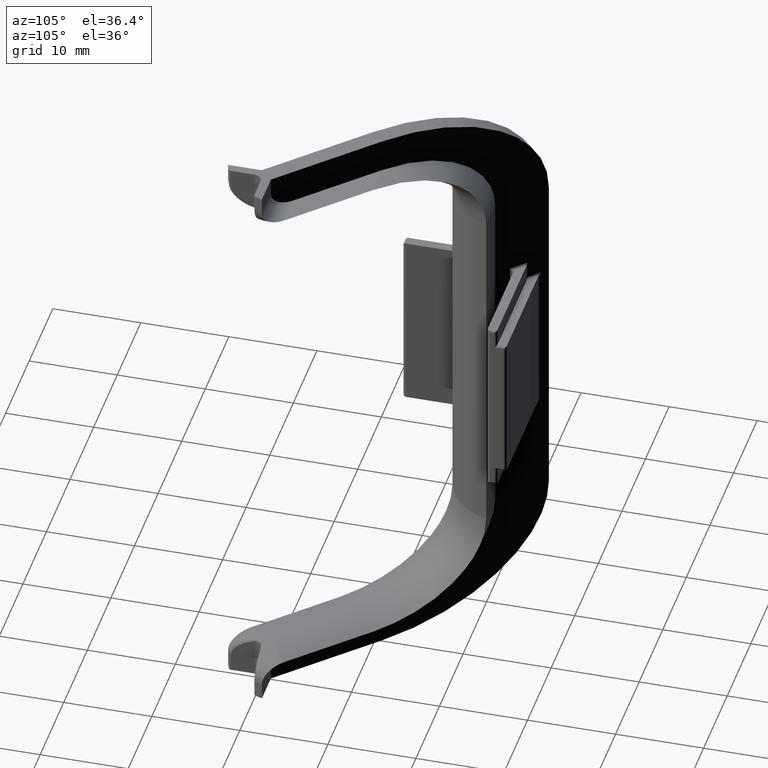
[diagram: clean part render]
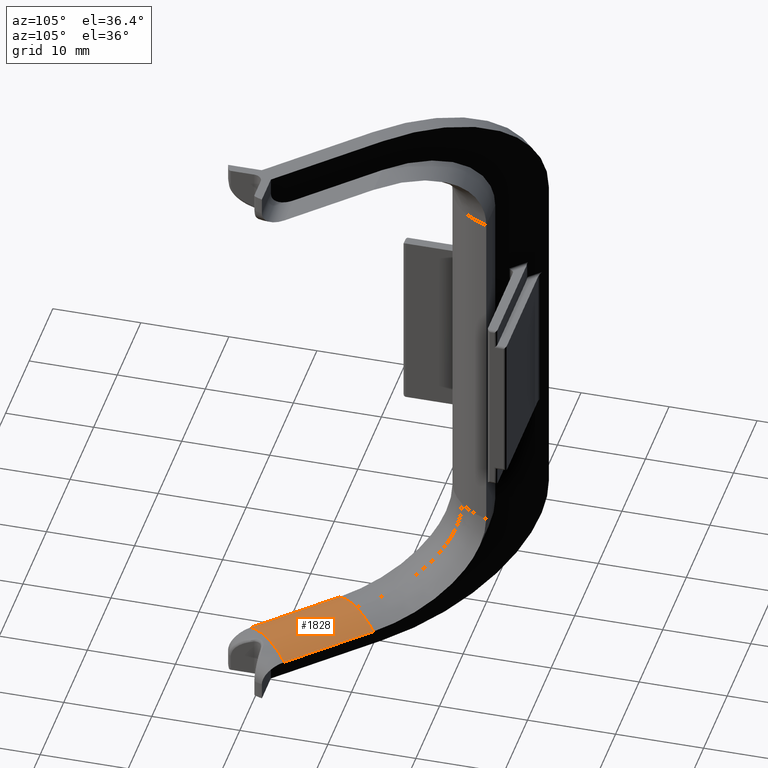
[diagram: same view with one face highlighted and labeled with its STEP entity id]
A machine part, auxiliary view. The second image highlights one B-rep face of the part: STEP entity #1828.
In plain terms, the highlighted cylindrical surface (partial cylindrical patch) has radius 8 mm, axis along (0.7071, -0.7071, 0).
Its self-contained STEP definition (entity closure, byte-faithful):
#255=FACE_OUTER_BOUND('',#364,.T.);
#364=EDGE_LOOP('',(#1647,#1648,#1649,#1650,#1651,#1652));
#492=LINE('',#3429,#637);
#503=LINE('',#3472,#648);
#637=VECTOR('',#2473,10.);
#648=VECTOR('',#2502,10.);
#681=CIRCLE('',#1888,8.);
#685=CIRCLE('',#1895,8.);
#696=CIRCLE('',#2030,8.);
#699=CIRCLE('',#2035,8.);
#746=VERTEX_POINT('',#3006);
#747=VERTEX_POINT('',#3011);
#755=VERTEX_POINT('',#3055);
#849=VERTEX_POINT('',#3417);
#858=VERTEX_POINT('',#3471);
#865=VERTEX_POINT('',#3528);
#930=EDGE_CURVE('',#746,#747,#681,.T.);
#942=EDGE_CURVE('',#755,#746,#685,.T.);
#1097=EDGE_CURVE('',#849,#755,#492,.T.);
#1112=EDGE_CURVE('',#858,#747,#503,.T.);
#1127=EDGE_CURVE('',#849,#865,#696,.T.);
#1133=EDGE_CURVE('',#858,#865,#699,.T.);
#1647=ORIENTED_EDGE('',*,*,#1112,.T.);
#1648=ORIENTED_EDGE('',*,*,#930,.F.);
#1649=ORIENTED_EDGE('',*,*,#942,.F.);
#1650=ORIENTED_EDGE('',*,*,#1097,.F.);
#1651=ORIENTED_EDGE('',*,*,#1127,.T.);
#1652=ORIENTED_EDGE('',*,*,#1133,.F.);
#1725=CYLINDRICAL_SURFACE('',#2034,8.);
#1828=ADVANCED_FACE('',(#255),#1725,.T.);
#1888=AXIS2_PLACEMENT_3D('',#3012,#2125,#2126);
#1895=AXIS2_PLACEMENT_3D('',#3057,#2145,#2146);
#2030=AXIS2_PLACEMENT_3D('',#3529,#2532,#2533);
#2034=AXIS2_PLACEMENT_3D('',#3577,#2541,#2542);
#2035=AXIS2_PLACEMENT_3D('',#3578,#2543,#2544);
#2125=DIRECTION('center_axis',(0.707106781186548,-0.707106781186547,6.36782550479628E-16));
#2126=DIRECTION('ref_axis',(0.327036886298778,0.327036886298779,0.886619281315266));
#2145=DIRECTION('center_axis',(0.707106781186548,-0.707106781186547,6.36782550479628E-16));
#2146=DIRECTION('ref_axis',(0.327036886298778,0.327036886298779,0.886619281315266));
#2473=DIRECTION('',(0.707106781186548,-0.707106781186547,7.85046229341888E-16));
#2502=DIRECTION('',(0.707106781186548,-0.707106781186547,7.85046229341888E-16));
#2532=DIRECTION('center_axis',(0.707106781186548,-0.707106781186547,6.36782550479628E-16));
#2533=DIRECTION('ref_axis',(0.327036886298778,0.327036886298779,0.886619281315266));
#2541=DIRECTION('center_axis',(0.707106781186548,-0.707106781186547,7.85046229341888E-16));
#2542=DIRECTION('ref_axis',(-0.327036886298779,-0.327036886298778,0.886619281315267));
#2543=DIRECTION('center_axis',(-0.707106781186548,0.707106781186547,-6.36782550479628E-16));
#2544=DIRECTION('ref_axis',(-0.327036886298779,-0.327036886298778,0.886619281315267));
#3006=CARTESIAN_POINT('',(20.6162950903902,30.6162950903902,-29.1929542505221));
#3011=CARTESIAN_POINT('',(18.,28.,-30.1));
#3012=CARTESIAN_POINT('Origin',(20.6162950903902,30.6162950903902,-37.1929542505221));
#3055=CARTESIAN_POINT('',(23.2325901807804,33.2325901807804,-30.1));
#3057=CARTESIAN_POINT('Origin',(20.6162950903902,30.6162950903902,-37.1929542505221));
#3417=CARTESIAN_POINT('',(15.2325901807805,41.2325901807804,-30.1));
#3429=CARTESIAN_POINT('',(15.2325901807805,41.2325901807804,-30.1));
#3471=CARTESIAN_POINT('',(10.,36.,-30.1));
#3472=CARTESIAN_POINT('',(10.,36.,-30.1));
#3528=CARTESIAN_POINT('',(12.6162950903902,38.6162950903902,-29.1929542505221));
#3529=CARTESIAN_POINT('Origin',(12.6162950903902,38.6162950903902,-37.1929542505221));
#3577=CARTESIAN_POINT('Origin',(12.6162950903903,38.6162950903902,-37.1929542505221));
#3578=CARTESIAN_POINT('Origin',(12.6162950903903,38.6162950903902,-37.1929542505221));